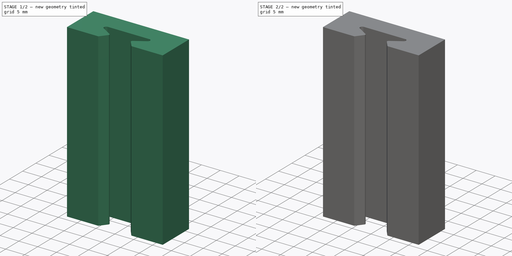
[diagram: build sequence overview — one tinted view per stage of 2, left to right]
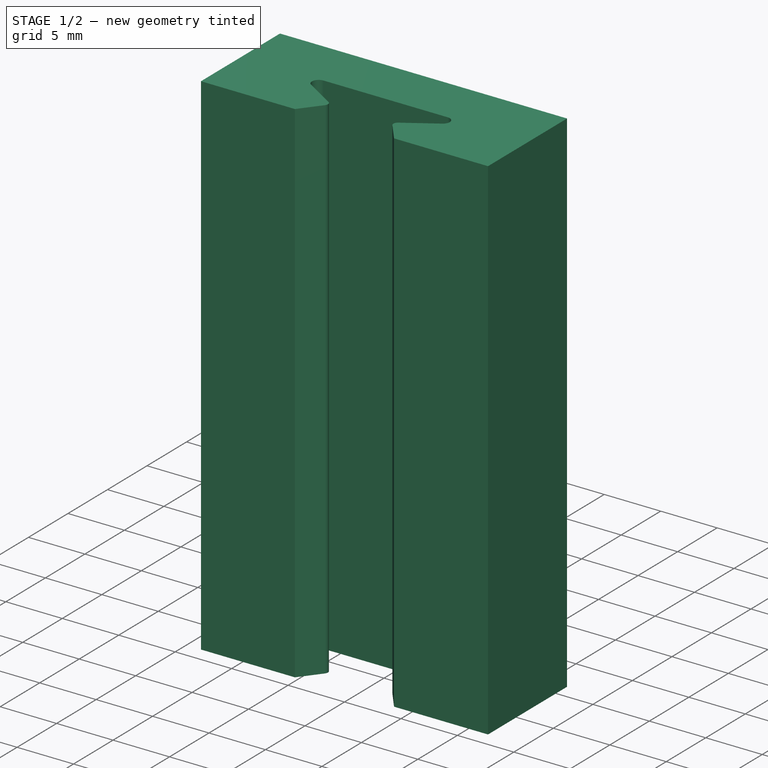
[diagram: stage 1 of 2 — iso view after this stage's code; geometry added in this stage tinted green]
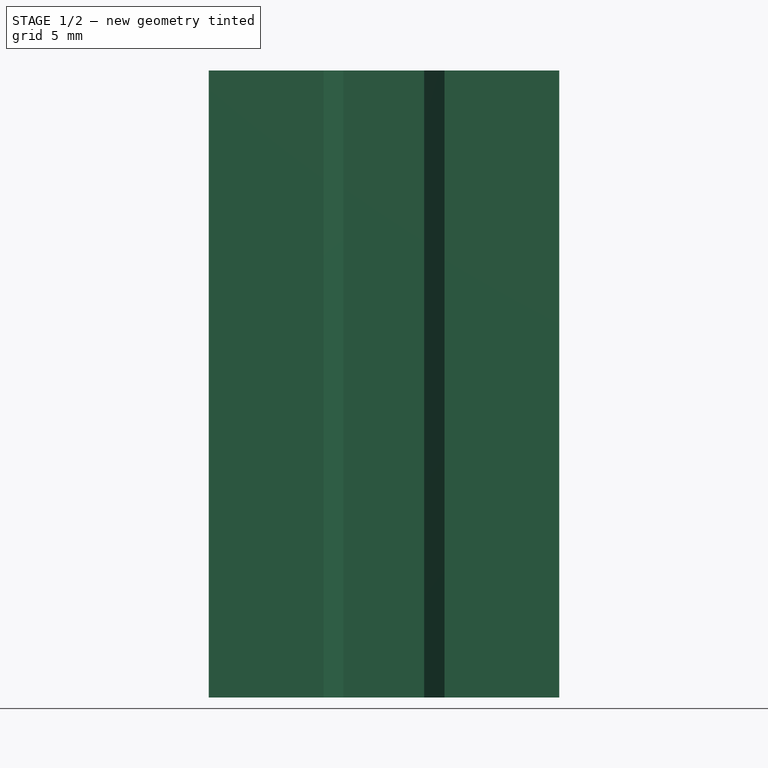
[diagram: stage 1 of 2 — front view after this stage's code; geometry added in this stage tinted green]
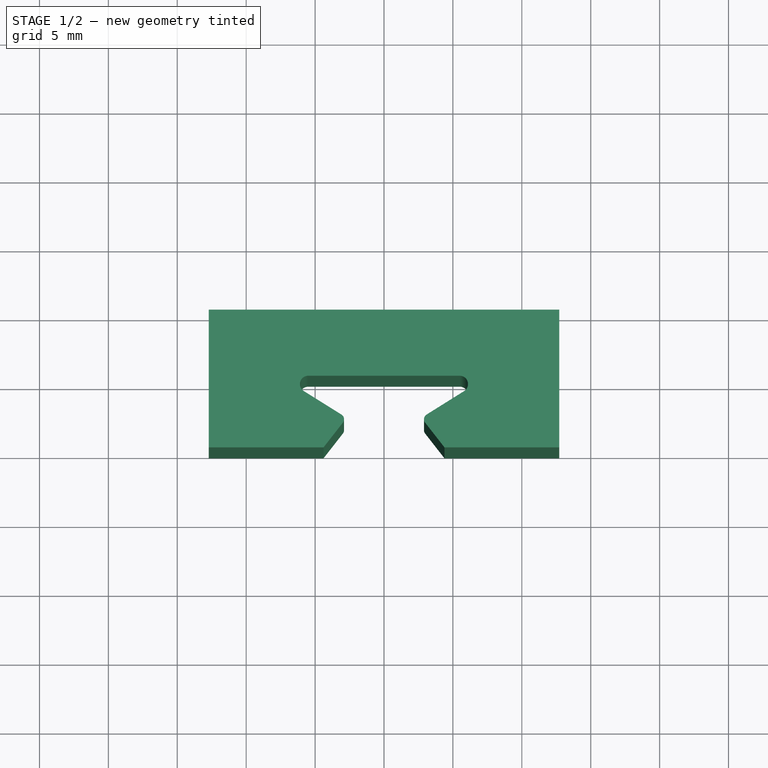
[diagram: stage 1 of 2 — top view after this stage's code; geometry added in this stage tinted green]
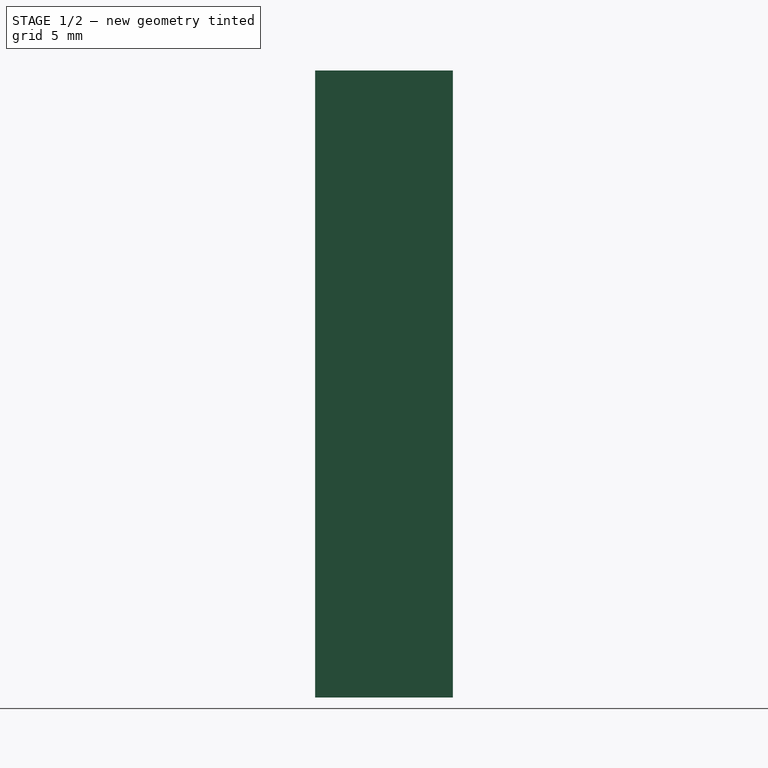
[diagram: stage 1 of 2 — right view after this stage's code; geometry added in this stage tinted green]
FCSTD DOCUMENT  (FreeCAD 0.21R33771 (Git))
Label: Pattino-12
License: All rights reserved
LicenseURL: http://en.wikipedia.org/wiki/All_rights_reserved
objects: Sketcher::SketchObject×2, PartDesign::Pad×1, PartDesign::Pocket×1, PartDesign::CoordinateSystem×1, PartDesign::Body×1
note: 8 computed .brp shape members not serialized (recipe doc carries the construction recipe); baked Part::Feature solids carry a one-line shape summary decoded from their .brp

FEATURE [Sketcher::SketchObject] Sketch
  FullyConstrained = true
  MapMode = 5
  Support = -> [XY_Plane]
  sketch-geometry (14):
    g0: LineSegment StartX=12.715 StartY=8e-16 StartZ=0 EndX=12.715 EndY=10 EndZ=0
    g1: LineSegment StartX=12.715 StartY=10 StartZ=0 EndX=-12.715 EndY=10 EndZ=0
    g2: LineSegment StartX=-5.5 StartY=5.2 StartZ=0 EndX=5.5 EndY=5.2 EndZ=0
    g3: LineSegment StartX=4.39099 StartY=4e-16 StartZ=0 EndX=12.715 EndY=8e-16 EndZ=0
    g4: LineSegment StartX=-5.81795 StartY=4.09117 StartZ=0 EndX=-3.08803 EndY=2.38533 EndZ=0
    g5: LineSegment StartX=-2.9848 StartY=1.79984 StartZ=0 EndX=-4.39099 EndY=0 EndZ=0
    g6: LineSegment StartX=5.81795 StartY=4.09117 StartZ=0 EndX=3.08803 EndY=2.38533 EndZ=0
    g7: LineSegment StartX=2.9848 StartY=1.79984 StartZ=0 EndX=4.39099 EndY=4e-16 EndZ=0
    g8: LineSegment StartX=-12.715 StartY=10 StartZ=0 EndX=-12.715 EndY=0 EndZ=0
    g9: LineSegment StartX=-12.715 StartY=0 StartZ=0 EndX=-4.39099 EndY=0 EndZ=0
    g10: ArcOfCircle CenterX=3.3 CenterY=2.04611 CenterZ=0 NormalX=0 NormalY=0 NormalZ=1 AngleXU=0 Radius=0.4 StartAngle=2.1293 EndAngle=3.80482
    g11: ArcOfCircle CenterX=-3.3 CenterY=2.04611 CenterZ=0 NormalX=0 NormalY=0 NormalZ=1 AngleXU=0 Radius=0.4 StartAngle=5.61996 EndAngle=7.29548
    g12: ArcOfCircle CenterX=-5.5 CenterY=4.6 CenterZ=0 NormalX=0 NormalY=0 NormalZ=1 AngleXU=0 Radius=0.6 StartAngle=1.5708 EndAngle=4.15388
    g13: ArcOfCircle CenterX=5.5 CenterY=4.6 CenterZ=0 NormalX=0 NormalY=0 NormalZ=1 AngleXU=0 Radius=0.6 StartAngle=5.27089 EndAngle=7.85398
  constraints (34):
    c: Coincident(g3,g0)
    c: Coincident(g0,g1)
    c: Vertical(g0)
    c: DistanceY(g0,g0) = 10
    c: Coincident(g7,g3)
    c: Coincident(g8,g1)
    c: PointOnObject(g8,g-1)
    c: Vertical(g8)
    c: Coincident(g9,g8)
    c: Coincident(g9,g5)
    c: Horizontal(g9)
    c: Symmetric(g1,g0,g-2)
    c: Symmetric(g5,g3,g-2)
    c: Tangent(g7,g10) = -1.5708
    c: Tangent(g6,g10) = -1.5708
    c: Tangent(g5,g11) = 1.5708
    c: Tangent(g4,g11) = 1.5708
    c: Tangent(g4,g12) = -1.5708
    c: Tangent(g2,g12) = 1.5708
    c: Tangent(g6,g13) = 1.5708
    c: Tangent(g2,g13) = 1.5708
    c: Radius(g13) = 0.6
    c: Equal(g13,g12)
    c: Radius(g11) = 0.4
    c: Equal(g11,g10)
    c: Symmetric(g12,g13,g-2)
    c: Symmetric(g11,g10,g-2)
    c: DistanceY(g5,g12) = 4.6
    c: Angle(g2,g6) = 0.558505
    c: Angle(g7,g-1) = 0.907571
    c: DistanceX(g11,g-1) = 3.3
    c: DistanceX(g1,g1) = 25.43
    c: DistanceY(g8,g8) = 10
    c: DistanceX(g12,g13) = 11
FEATURE [PartDesign::Pad] Pad
  Direction = (0,0,1)
  Length = 45.5
  Length2 = 100
  Profile = -> Sketch
  Type = 0
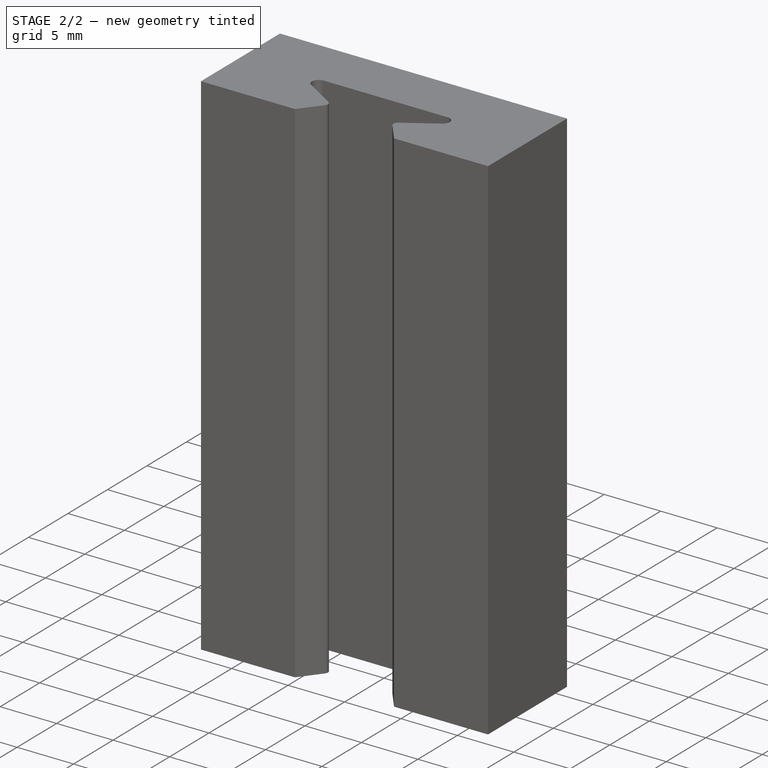
[diagram: stage 2 of 2 — iso view after this stage's code; geometry added in this stage tinted green]
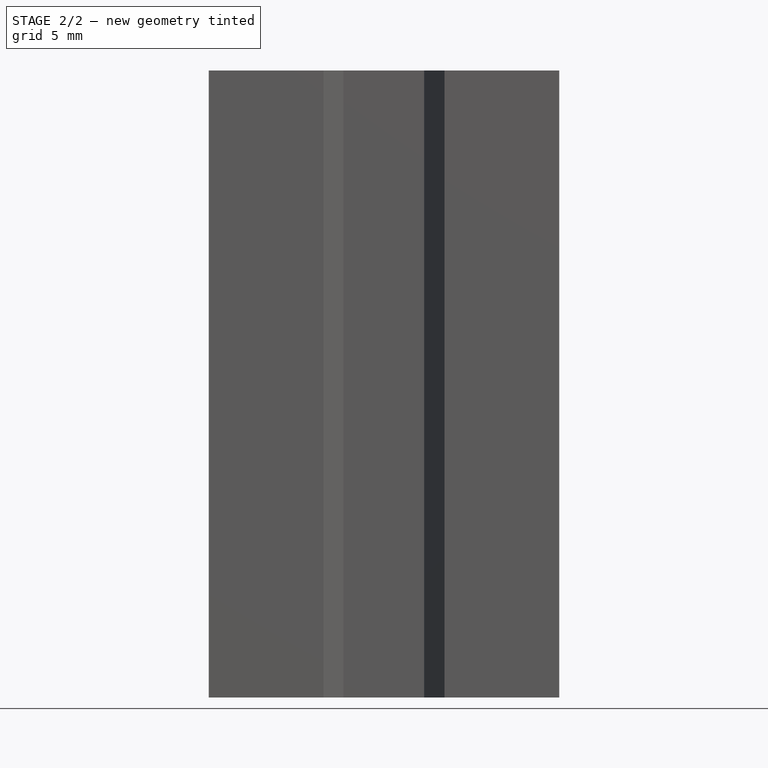
[diagram: stage 2 of 2 — front view after this stage's code; geometry added in this stage tinted green]
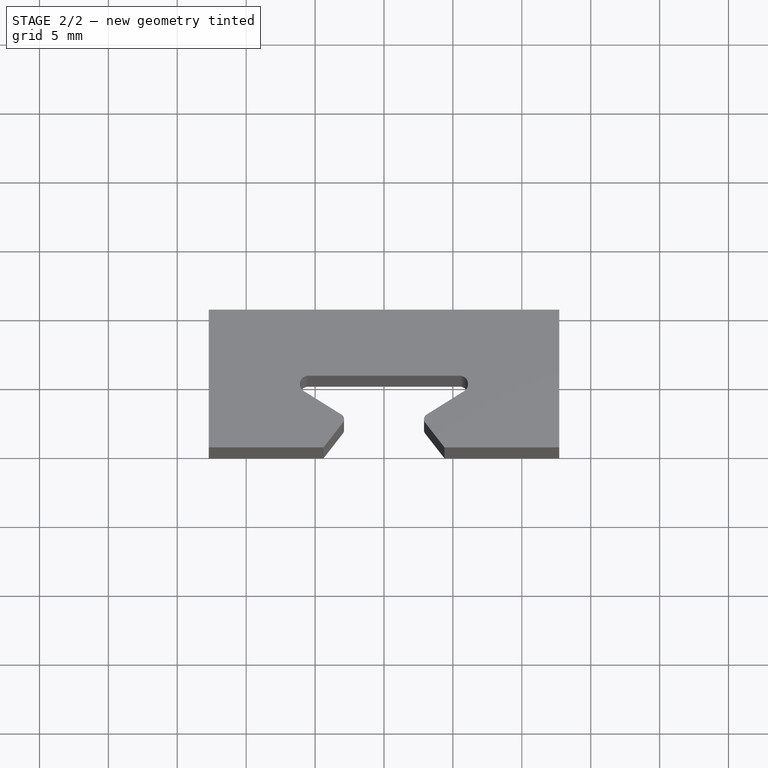
[diagram: stage 2 of 2 — top view after this stage's code; geometry added in this stage tinted green]
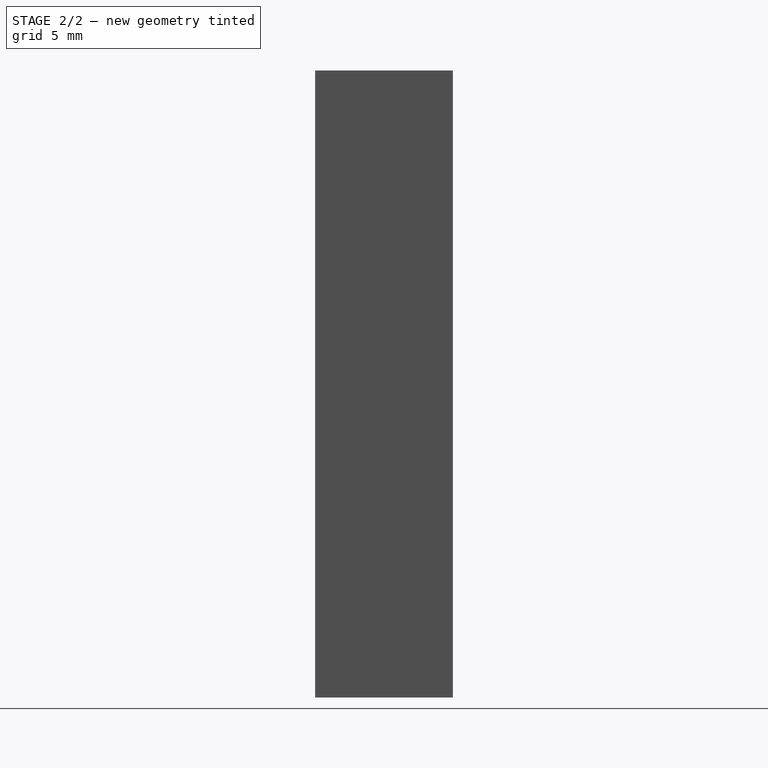
[diagram: stage 2 of 2 — right view after this stage's code; geometry added in this stage tinted green]
FEATURE [Sketcher::SketchObject] Sketch001
  FullyConstrained = true
  MapMode = 5
  Placement = pos=(0,10,0) rot=(0,0.707107,0.707107;3.14159rad)
  Support = -> [Pad]
  sketch-geometry (8):
    g0: LineSegment StartX=-10 StartY=32 StartZ=0 EndX=10 EndY=32 EndZ=0
    g1: LineSegment StartX=10 StartY=32 StartZ=0 EndX=10 EndY=12 EndZ=0
    g2: LineSegment StartX=10 StartY=12 StartZ=0 EndX=-10 EndY=12 EndZ=0
    g3: LineSegment StartX=-10 StartY=12 StartZ=0 EndX=-10 EndY=32 EndZ=0
    g4: Circle CenterX=-10 CenterY=12 CenterZ=0 NormalX=0 NormalY=0 NormalZ=1 AngleXU=0 Radius=1.4
    g5: Circle CenterX=-10 CenterY=32 CenterZ=0 NormalX=0 NormalY=0 NormalZ=1 AngleXU=0 Radius=1.4
    g6: Circle CenterX=10 CenterY=32 CenterZ=0 NormalX=0 NormalY=0 NormalZ=1 AngleXU=0 Radius=1.4
    g7: Circle CenterX=10 CenterY=12 CenterZ=0 NormalX=0 NormalY=0 NormalZ=1 AngleXU=0 Radius=1.4
  constraints (19):
    c: Horizontal(g0)
    c: Coincident(g1,g0)
    c: Vertical(g1)
    c: Coincident(g3,g2)
    c: Coincident(g3,g0)
    c: Coincident(g4,g2)
    c: Vertical(g3)
    c: DistanceX(g0,g0) = 20
    c: DistanceY(g1,g1) = 20
    c: Coincident(g2,g1)
    c: Radius(g4) = 1.4
    c: Coincident(g5,g0)
    c: Coincident(g6,g0)
    c: Coincident(g7,g1)
    c: Equal(g4,g7)
    c: Equal(g7,g6)
    c: Equal(g6,g5)
    c: Symmetric(g7,g4,g-2)
    c: DistanceY(g-1,g7) = 12
FEATURE [PartDesign::Pocket] Pocket
  BaseFeature = -> Pad
  Direction = (0,-1,2e-16)
  Length = 6
  Length2 = 5
  Profile = -> Sketch001
  ReferenceAxis = -> Sketch001 [N_Axis]
  Type = 0
FEATURE [PartDesign::CoordinateSystem] LCS_PattinoQuadro12_1
  AttacherType = Attacher::AttachEngine3D
FEATURE [PartDesign::Body] Body
  Group = -> [Sketch,Pad,Sketch001,Pocket,LCS_PattinoQuadro12_1]
  Origin = -> Origin
  Tip = -> Pocket
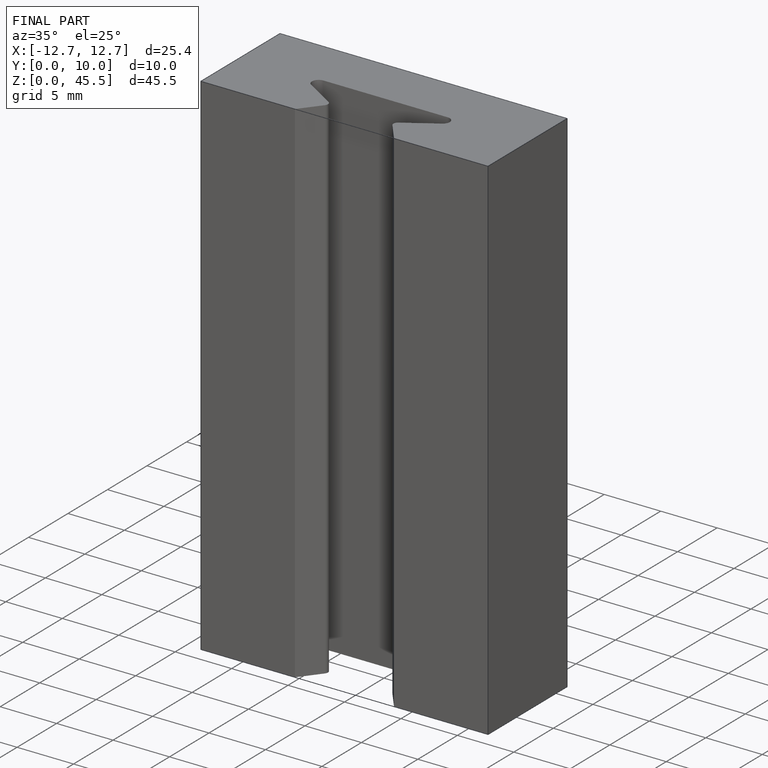
[diagram: finished part — iso view with bounding-box wireframe]
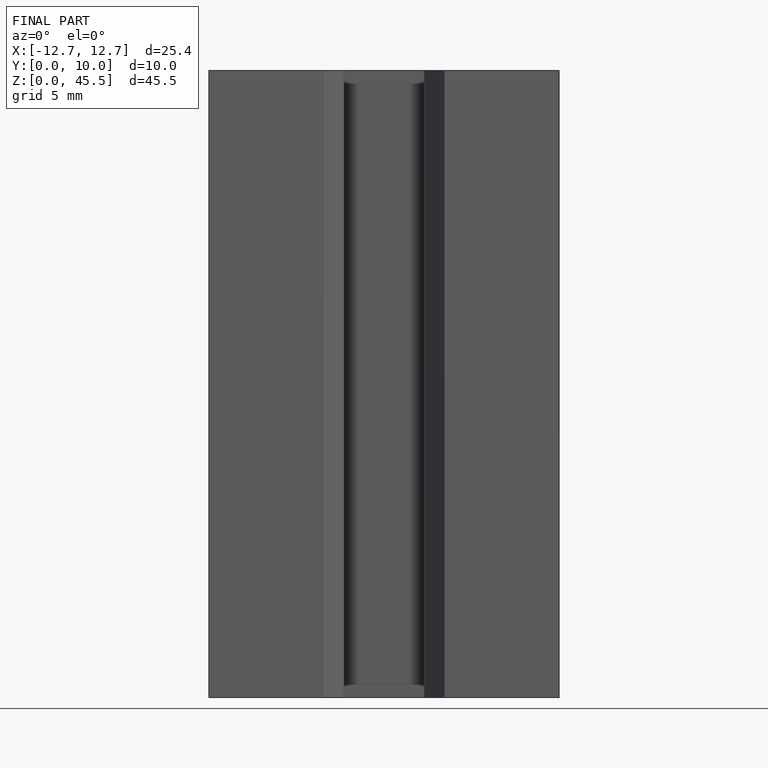
[diagram: finished part — front view with bounding-box wireframe]
